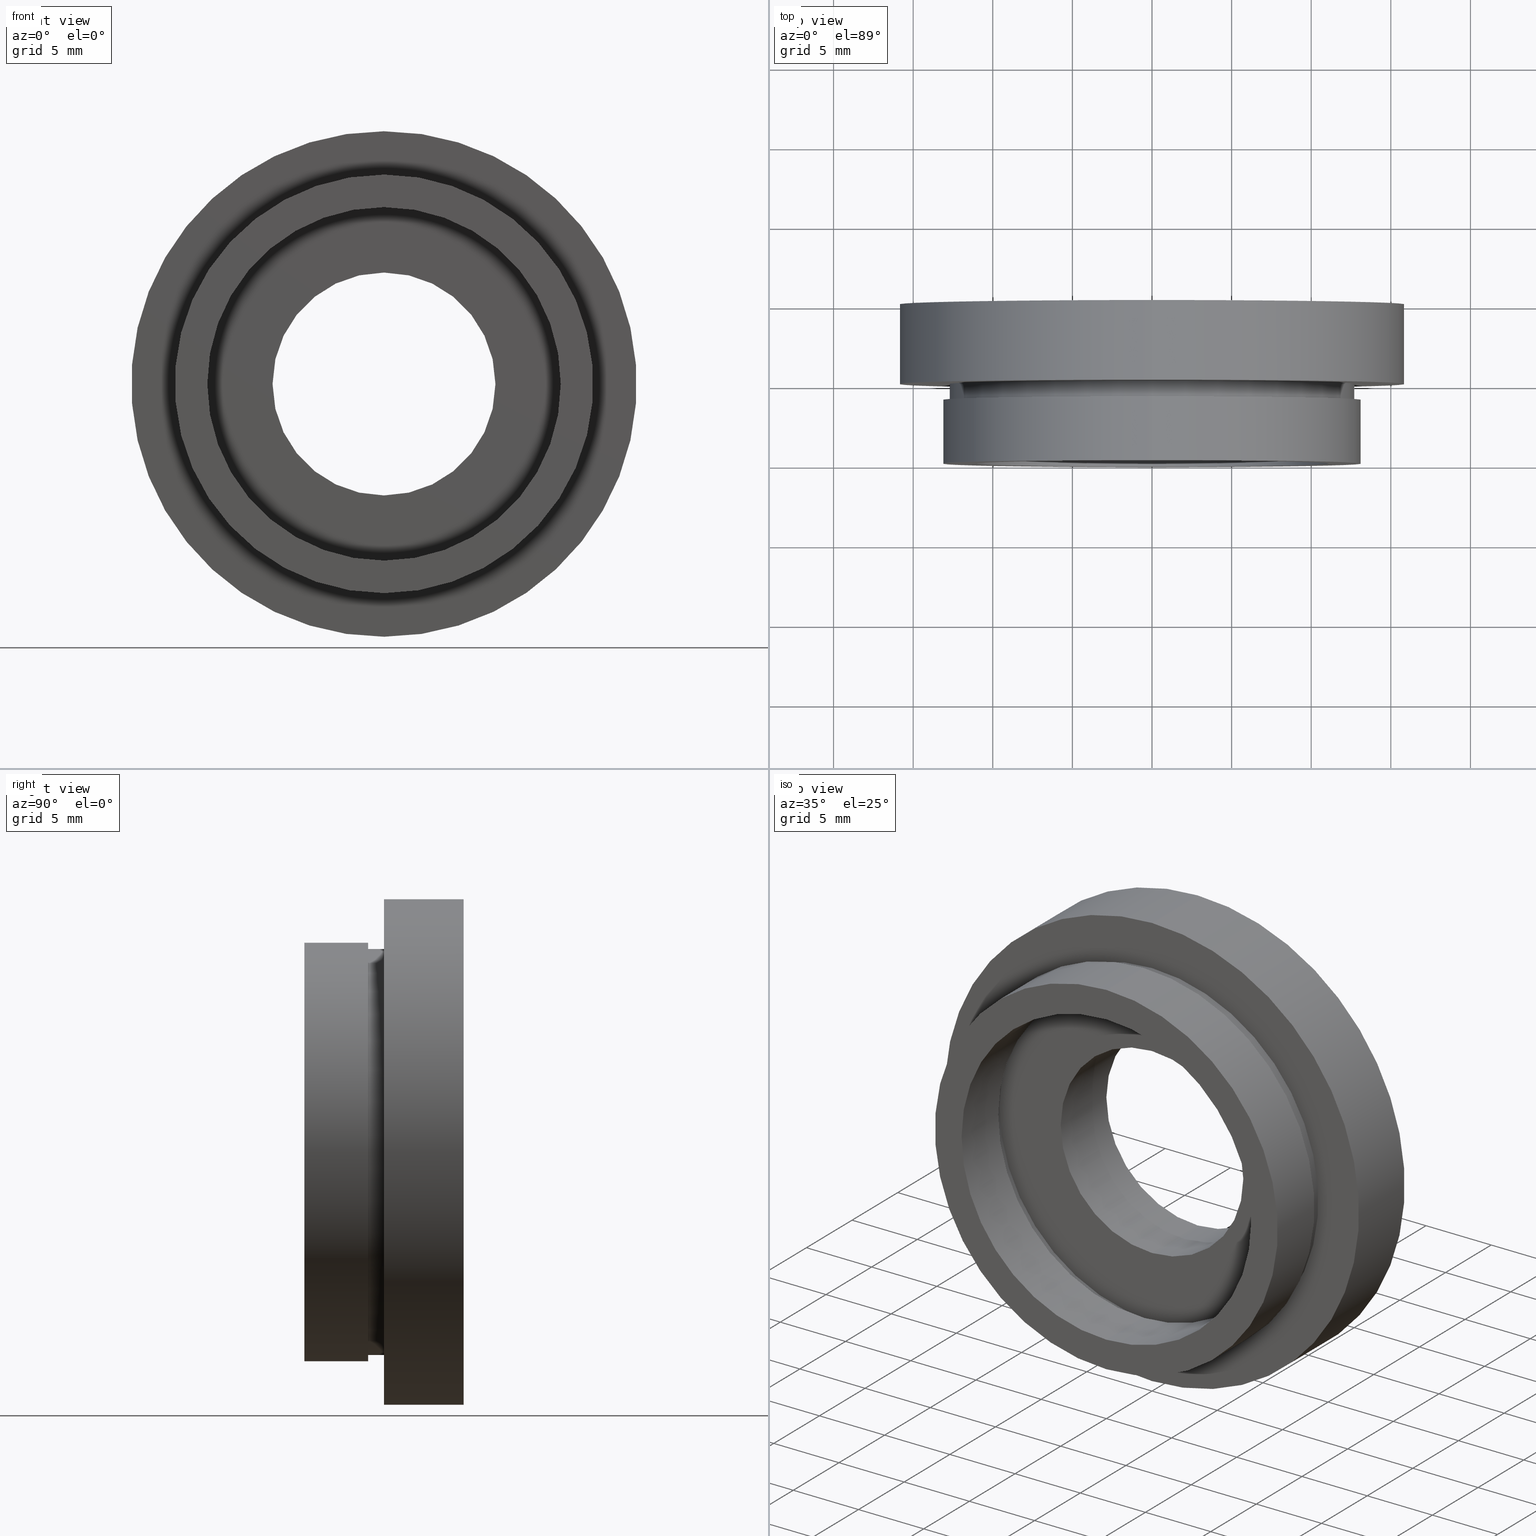
[diagram: canonical four-view strip — front | top / right | iso, engineering-drawing reading convention]
A machine part, canonical four-view strip (front | top / right | iso — engineering-drawing reading convention). The complete STEP part file that produces these views, byte-faithful:
ISO-10303-21;
HEADER;
FILE_DESCRIPTION (( 'STEP AP214' ),
    '1' );
FILE_NAME ('504118.STEP',
    '2019-10-10T02:32:36',
    ( 'user' ),
    ( '΢���й�' ),
    'SwSTEP 2.0',
    'SolidWorks 2016',
    '' );
FILE_SCHEMA (( 'AUTOMOTIVE_DESIGN' ));
ENDSEC;

DATA;
#1 = ORIENTED_EDGE ( 'NONE', *, *, #54, .F. ) ;
#2 = ADVANCED_FACE ( 'NONE', ( #399 ), #504, .F. ) ;
#3 = DIRECTION ( 'NONE',  ( 0.0000000000000000000, 0.0000000000000000000, 1.000000000000000000 ) ) ;
#4 =( NAMED_UNIT ( * ) PLANE_ANGLE_UNIT ( ) SI_UNIT ( $, .RADIAN. ) );
#5 = AXIS2_PLACEMENT_3D ( 'NONE', #67, #74, #57 ) ;
#6 = DIRECTION ( 'NONE',  ( 0.0000000000000000000, 0.0000000000000000000, 1.000000000000000000 ) ) ;
#7 = ORIENTED_EDGE ( 'NONE', *, *, #143, .T. ) ;
#8 = CYLINDRICAL_SURFACE ( 'NONE', #257, 15.87500000000000000 ) ;
#9 = ORIENTED_EDGE ( 'NONE', *, *, #520, .F. ) ;
#10 = AXIS2_PLACEMENT_3D ( 'NONE', #193, #482, #103 ) ;
#11 = CARTESIAN_POINT ( 'NONE',  ( 0.0000000000000000000, 4.000000000000000000, 0.0000000000000000000 ) ) ;
#12 =( LENGTH_UNIT ( ) NAMED_UNIT ( * ) SI_UNIT ( .MILLI., .METRE. ) );
#13 = VECTOR ( 'NONE', #95, 1000.000000000000000 ) ;
#14 =( NAMED_UNIT ( * ) PLANE_ANGLE_UNIT ( ) SI_UNIT ( $, .RADIAN. ) );
#15 = ORIENTED_EDGE ( 'NONE', *, *, #621, .F. ) ;
#16 = CYLINDRICAL_SURFACE ( 'NONE', #401, 12.75000000000000000 ) ;
#17 = COLOUR_RGB ( '',1.000000000000000000, 1.000000000000000000, 1.000000000000000000 ) ;
#18 =( GEOMETRIC_REPRESENTATION_CONTEXT ( 3 ) GLOBAL_UNCERTAINTY_ASSIGNED_CONTEXT ( ( #586 ) ) GLOBAL_UNIT_ASSIGNED_CONTEXT ( ( #252, #264, #417 ) ) REPRESENTATION_CONTEXT ( 'NONE', 'WORKASPACE' ) );
#19 = CARTESIAN_POINT ( 'NONE',  ( 0.0000000000000000000, 13.74468085106383300, 0.0000000000000000000 ) ) ;
#20 = DIRECTION ( 'NONE',  ( 0.0000000000000000000, 0.0000000000000000000, 1.000000000000000000 ) ) ;
#21 = LINE ( 'NONE', #24, #609 ) ;
#22 = CARTESIAN_POINT ( 'NONE',  ( 1.609798217479195900E-015, 13.74468085106383300, -13.14500000000000000 ) ) ;
#23 = EDGE_LOOP ( 'NONE', ( #38, #222 ) ) ;
#24 = CARTESIAN_POINT ( 'NONE',  ( 0.0000000000000000000, 13.74468085106383300, 15.87500000000000000 ) ) ;
#25 = CARTESIAN_POINT ( 'NONE',  ( 0.0000000000000000000, 13.74468085106383300, 0.0000000000000000000 ) ) ;
#26 = AXIS2_PLACEMENT_3D ( 'NONE', #554, #400, #530 ) ;
#27 = CIRCLE ( 'NONE', #525, 11.10000000000000100 ) ;
#28 = DIRECTION ( 'NONE',  ( 0.0000000000000000000, 0.0000000000000000000, 1.000000000000000000 ) ) ;
#29 = FACE_OUTER_BOUND ( 'NONE', #207, .T. ) ;
#30 = VERTEX_POINT ( 'NONE', #279 ) ;
#31 = LINE ( 'NONE', #63, #36 ) ;
#32 = FILL_AREA_STYLE ('',( #45 ) ) ;
#33 = SURFACE_SIDE_STYLE ('',( #131 ) ) ;
#34 = AXIS2_PLACEMENT_3D ( 'NONE', #42, #37, #20 ) ;
#35 = ORIENTED_EDGE ( 'NONE', *, *, #261, .F. ) ;
#36 = VECTOR ( 'NONE', #102, 1000.000000000000000 ) ;
#37 = DIRECTION ( 'NONE',  ( -0.0000000000000000000, 1.000000000000000000, -0.0000000000000000000 ) ) ;
#38 = ORIENTED_EDGE ( 'NONE', *, *, #435, .T. ) ;
#39 = CARTESIAN_POINT ( 'NONE',  ( 0.0000000000000000000, 13.74468085106383300, 0.0000000000000000000 ) ) ;
#40 = DIRECTION ( 'NONE',  ( -0.0000000000000000000, 1.000000000000000000, -0.0000000000000000000 ) ) ;
#41 = CIRCLE ( 'NONE', #104, 11.10000000000000100 ) ;
#42 = CARTESIAN_POINT ( 'NONE',  ( 0.0000000000000000000, 4.999999999999999100, 0.0000000000000000000 ) ) ;
#43 = ORIENTED_EDGE ( 'NONE', *, *, #490, .F. ) ;
#44 = ADVANCED_FACE ( 'NONE', ( #71 ), #418, .F. ) ;
#45 = FILL_AREA_STYLE_COLOUR ( '', #556 ) ;
#46 = CARTESIAN_POINT ( 'NONE',  ( 15.87500000000000000, 5.000000000000000900, 0.0000000000000000000 ) ) ;
#47 = MECHANICAL_DESIGN_GEOMETRIC_PRESENTATION_REPRESENTATION (  '', ( #81 ), #370 ) ;
#48 = COLOUR_RGB ( '',1.000000000000000000, 1.000000000000000000, 1.000000000000000000 ) ;
#49 = AXIS2_PLACEMENT_3D ( 'NONE', #498, #116, #248 ) ;
#50 = SURFACE_STYLE_FILL_AREA ( #314 ) ;
#51 = CIRCLE ( 'NONE', #92, 7.000000000000001800 ) ;
#52 = DIRECTION ( 'NONE',  ( 0.0000000000000000000, 0.0000000000000000000, 1.000000000000000000 ) ) ;
#53 = MECHANICAL_DESIGN_GEOMETRIC_PRESENTATION_REPRESENTATION (  '', ( #588 ), #299 ) ;
#54 = EDGE_CURVE ( 'NONE', #250, #259, #41, .T. ) ;
#55 = CARTESIAN_POINT ( 'NONE',  ( 8.572527594031474200E-016, 13.74468085106383300, -7.000000000000001800 ) ) ;
#56 = ADVANCED_FACE ( 'NONE', ( #171, #326 ), #64, .F. ) ;
#57 = DIRECTION ( 'NONE',  ( 0.0000000000000000000, 0.0000000000000000000, 1.000000000000000000 ) ) ;
#58 = FACE_BOUND ( 'NONE', #361, .T. ) ;
#59 = AXIS2_PLACEMENT_3D ( 'NONE', #132, #100, #351 ) ;
#60 = VERTEX_POINT ( 'NONE', #218 ) ;
#61 = CIRCLE ( 'NONE', #371, 12.75000000000000000 ) ;
#62 = VECTOR ( 'NONE', #69, 1000.000000000000000 ) ;
#63 = CARTESIAN_POINT ( 'NONE',  ( 0.0000000000000000000, 13.74468085106383300, 12.75000000000000000 ) ) ;
#64 = PLANE ( 'NONE',  #146 ) ;
#65 = EDGE_CURVE ( 'NONE', #346, #292, #263, .T. ) ;
#66 = SURFACE_STYLE_USAGE ( .BOTH. , #183 ) ;
#67 = CARTESIAN_POINT ( 'NONE',  ( 0.0000000000000000000, 4.000000000000000000, 0.0000000000000000000 ) ) ;
#68 = DIRECTION ( 'NONE',  ( -0.0000000000000000000, 1.000000000000000000, -0.0000000000000000000 ) ) ;
#69 = DIRECTION ( 'NONE',  ( -0.0000000000000000000, 1.000000000000000000, -0.0000000000000000000 ) ) ;
#70 = ORIENTED_EDGE ( 'NONE', *, *, #553, .T. ) ;
#71 = FACE_OUTER_BOUND ( 'NONE', #267, .T. ) ;
#72 = AXIS2_PLACEMENT_3D ( 'NONE', #174, #236, #124 ) ;
#73 = DIRECTION ( 'NONE',  ( -0.0000000000000000000, 1.000000000000000000, -0.0000000000000000000 ) ) ;
#74 = DIRECTION ( 'NONE',  ( -0.0000000000000000000, 1.000000000000000000, -0.0000000000000000000 ) ) ;
#75 = DIRECTION ( 'NONE',  ( -0.0000000000000000000, 1.000000000000000000, -0.0000000000000000000 ) ) ;
#76 = ORIENTED_EDGE ( 'NONE', *, *, #532, .T. ) ;
#77 = EDGE_LOOP ( 'NONE', ( #43, #484, #76, #415 ) ) ;
#78 = DIRECTION ( 'NONE',  ( 0.0000000000000000000, 0.0000000000000000000, 1.000000000000000000 ) ) ;
#79 = UNCERTAINTY_MEASURE_WITH_UNIT (LENGTH_MEASURE( 1.000000000000000100E-005 ), #321, 'distance_accuracy_value', 'NONE');
#80 =( NAMED_UNIT ( * ) SI_UNIT ( $, .STERADIAN. ) SOLID_ANGLE_UNIT ( ) );
#81 = STYLED_ITEM ( 'NONE', ( #256 ), #511 ) ;
#82 = ORIENTED_EDGE ( 'NONE', *, *, #233, .T. ) ;
#83 = PRESENTATION_LAYER_ASSIGNMENT (  '', '', ( #151 ) ) ;
#84 = SURFACE_STYLE_USAGE ( .BOTH. , #109 ) ;
#85 = CARTESIAN_POINT ( 'NONE',  ( 0.0000000000000000000, 4.999999999999999100, 7.000000000000001800 ) ) ;
#86 = ADVANCED_FACE ( 'NONE', ( #208 ), #549, .T. ) ;
#87 = CARTESIAN_POINT ( 'NONE',  ( 0.0000000000000000000, 5.000000000000000900, 12.75000000000000000 ) ) ;
#88 = VERTEX_POINT ( 'NONE', #188 ) ;
#89 = ORIENTED_EDGE ( 'NONE', *, *, #477, .T. ) ;
#90 = SURFACE_STYLE_FILL_AREA ( #123 ) ;
#91 = FILL_AREA_STYLE_COLOUR ( '', #302 ) ;
#92 = AXIS2_PLACEMENT_3D ( 'NONE', #147, #596, #195 ) ;
#93 = CARTESIAN_POINT ( 'NONE',  ( 1.561424668912875100E-015, 4.000000000000000000, -12.75000000000000000 ) ) ;
#94 = PRESENTATION_LAYER_ASSIGNMENT (  '', '', ( #216 ) ) ;
#95 = DIRECTION ( 'NONE',  ( -0.0000000000000000000, 1.000000000000000000, -0.0000000000000000000 ) ) ;
#96 = PRESENTATION_LAYER_ASSIGNMENT (  '', '', ( #588 ) ) ;
#97 = VERTEX_POINT ( 'NONE', #184 ) ;
#98 = DIRECTION ( 'NONE',  ( -0.0000000000000000000, 1.000000000000000000, -0.0000000000000000000 ) ) ;
#99 = CARTESIAN_POINT ( 'NONE',  ( 0.0000000000000000000, 5.000000000000000900, 0.0000000000000000000 ) ) ;
#100 = DIRECTION ( 'NONE',  ( -0.0000000000000000000, 1.000000000000000000, -0.0000000000000000000 ) ) ;
#101 = ORIENTED_EDGE ( 'NONE', *, *, #583, .T. ) ;
#102 = DIRECTION ( 'NONE',  ( -0.0000000000000000000, 1.000000000000000000, -0.0000000000000000000 ) ) ;
#103 = DIRECTION ( 'NONE',  ( 0.0000000000000000000, 0.0000000000000000000, 1.000000000000000000 ) ) ;
#104 = AXIS2_PLACEMENT_3D ( 'NONE', #226, #514, #333 ) ;
#105 = FACE_OUTER_BOUND ( 'NONE', #138, .T. ) ;
#106 = EDGE_LOOP ( 'NONE', ( #422, #278 ) ) ;
#107 = CIRCLE ( 'NONE', #561, 11.70000000000000100 ) ;
#108 = DIRECTION ( 'NONE',  ( -0.0000000000000000000, 1.000000000000000000, -0.0000000000000000000 ) ) ;
#109 = SURFACE_SIDE_STYLE ('',( #90 ) ) ;
#110 = MECHANICAL_DESIGN_GEOMETRIC_PRESENTATION_REPRESENTATION (  '', ( #151 ), #198 ) ;
#111 = MECHANICAL_DESIGN_GEOMETRIC_PRESENTATION_REPRESENTATION (  '', ( #382 ), #298 ) ;
#112 = CARTESIAN_POINT ( 'NONE',  ( 0.0000000000000000000, 10.00000000000000000, 7.000000000000001800 ) ) ;
#113 = ORIENTED_EDGE ( 'NONE', *, *, #164, .T. ) ;
#114 = DIRECTION ( 'NONE',  ( -0.0000000000000000000, 1.000000000000000000, -0.0000000000000000000 ) ) ;
#115 = PRODUCT_DEFINITION_SHAPE ( 'NONE', 'NONE',  #509 ) ;
#116 = DIRECTION ( 'NONE',  ( -0.0000000000000000000, 1.000000000000000000, -0.0000000000000000000 ) ) ;
#117 =( NAMED_UNIT ( * ) PLANE_ANGLE_UNIT ( ) SI_UNIT ( $, .RADIAN. ) );
#118 = EDGE_CURVE ( 'NONE', #30, #60, #508, .T. ) ;
#119 = ORIENTED_EDGE ( 'NONE', *, *, #565, .T. ) ;
#120 = CARTESIAN_POINT ( 'NONE',  ( 7.000000000000001800, 10.00000000000000000, 0.0000000000000000000 ) ) ;
#121 = SURFACE_STYLE_FILL_AREA ( #581 ) ;
#122 = VERTEX_POINT ( 'NONE', #403 ) ;
#123 = FILL_AREA_STYLE ('',( #91 ) ) ;
#124 = DIRECTION ( 'NONE',  ( 0.0000000000000000000, 0.0000000000000000000, 1.000000000000000000 ) ) ;
#125 = ORIENTED_EDGE ( 'NONE', *, *, #435, .F. ) ;
#126 = DIRECTION ( 'NONE',  ( -0.0000000000000000000, 1.000000000000000000, -0.0000000000000000000 ) ) ;
#127 = PLANE ( 'NONE',  #72 ) ;
#128 = UNCERTAINTY_MEASURE_WITH_UNIT (LENGTH_MEASURE( 1.000000000000000100E-005 ), #176, 'distance_accuracy_value', 'NONE');
#129 = ORIENTED_EDGE ( 'NONE', *, *, #539, .T. ) ;
#130 = LINE ( 'NONE', #468, #367 ) ;
#131 = SURFACE_STYLE_FILL_AREA ( #352 ) ;
#132 = CARTESIAN_POINT ( 'NONE',  ( 0.0000000000000000000, 13.74468085106383300, 0.0000000000000000000 ) ) ;
#133 = AXIS2_PLACEMENT_3D ( 'NONE', #479, #407, #452 ) ;
#134 = CARTESIAN_POINT ( 'NONE',  ( 0.0000000000000000000, 13.74468085106383300, 0.0000000000000000000 ) ) ;
#135 = VERTEX_POINT ( 'NONE', #85 ) ;
#136 = VERTEX_POINT ( 'NONE', #315 ) ;
#137 =( NAMED_UNIT ( * ) SI_UNIT ( $, .STERADIAN. ) SOLID_ANGLE_UNIT ( ) );
#138 = EDGE_LOOP ( 'NONE', ( #388, #495, #204, #82 ) ) ;
#139 = CARTESIAN_POINT ( 'NONE',  ( 0.0000000000000000000, 4.000000000000000000, 0.0000000000000000000 ) ) ;
#140 = DIRECTION ( 'NONE',  ( -0.0000000000000000000, 1.000000000000000000, -0.0000000000000000000 ) ) ;
#141 = PLANE ( 'NONE',  #26 ) ;
#142 = ORIENTED_EDGE ( 'NONE', *, *, #118, .F. ) ;
#143 = EDGE_CURVE ( 'NONE', #309, #409, #61, .T. ) ;
#144 = VECTOR ( 'NONE', #268, 1000.000000000000000 ) ;
#145 = DIRECTION ( 'NONE',  ( 0.0000000000000000000, -0.0000000000000000000, -1.000000000000000000 ) ) ;
#146 = AXIS2_PLACEMENT_3D ( 'NONE', #46, #237, #523 ) ;
#147 = CARTESIAN_POINT ( 'NONE',  ( 0.0000000000000000000, 10.00000000000000000, 0.0000000000000000000 ) ) ;
#148 = FACE_OUTER_BOUND ( 'NONE', #291, .T. ) ;
#149 = VERTEX_POINT ( 'NONE', #360 ) ;
#150 = LINE ( 'NONE', #487, #567 ) ;
#151 = STYLED_ITEM ( 'NONE', ( #459 ), #406 ) ;
#152 = CIRCLE ( 'NONE', #380, 12.75000000000000000 ) ;
#153 = APPLICATION_PROTOCOL_DEFINITION ( 'draft international standard', 'automotive_design', 1998, #489 ) ;
#154 = CARTESIAN_POINT ( 'NONE',  ( 1.609798217479195900E-015, 4.000000000000000000, -13.14500000000000000 ) ) ;
#155 = FILL_AREA_STYLE_COLOUR ( '', #620 ) ;
#156 = SURFACE_STYLE_USAGE ( .BOTH. , #437 ) ;
#157 = DIRECTION ( 'NONE',  ( -0.0000000000000000000, 1.000000000000000000, -0.0000000000000000000 ) ) ;
#158 = EDGE_LOOP ( 'NONE', ( #443, #129, #89, #531 ) ) ;
#159 = EDGE_LOOP ( 'NONE', ( #284, #170 ) ) ;
#160 = ORIENTED_EDGE ( 'NONE', *, *, #175, .T. ) ;
#161 = ORIENTED_EDGE ( 'NONE', *, *, #474, .F. ) ;
#162 = SURFACE_STYLE_USAGE ( .BOTH. , #33 ) ;
#163 = DIRECTION ( 'NONE',  ( 0.0000000000000000000, -0.0000000000000000000, -1.000000000000000000 ) ) ;
#164 = EDGE_CURVE ( 'NONE', #88, #564, #425, .T. ) ;
#165 = AXIS2_PLACEMENT_3D ( 'NONE', #445, #98, #286 ) ;
#166 = COLOUR_RGB ( '',1.000000000000000000, 1.000000000000000000, 1.000000000000000000 ) ;
#167 = VECTOR ( 'NONE', #281, 1000.000000000000000 ) ;
#168 = AXIS2_PLACEMENT_3D ( 'NONE', #249, #496, #206 ) ;
#169 = VERTEX_POINT ( 'NONE', #598 ) ;
#170 = ORIENTED_EDGE ( 'NONE', *, *, #164, .F. ) ;
#171 = FACE_OUTER_BOUND ( 'NONE', #159, .T. ) ;
#172 = PRESENTATION_STYLE_ASSIGNMENT (( #156 ) ) ;
#173 = VERTEX_POINT ( 'NONE', #313 ) ;
#174 = CARTESIAN_POINT ( 'NONE',  ( 11.70000000000000100, 4.999999999999999100, 0.0000000000000000000 ) ) ;
#175 = EDGE_CURVE ( 'NONE', #225, #426, #282, .T. ) ;
#176 =( LENGTH_UNIT ( ) NAMED_UNIT ( * ) SI_UNIT ( .MILLI., .METRE. ) );
#177 = ADVANCED_FACE ( 'NONE', ( #460 ), #202, .F. ) ;
#178 = CARTESIAN_POINT ( 'NONE',  ( 1.359357947053562400E-015, 4.000000000000000000, -11.10000000000000100 ) ) ;
#179 = CIRCLE ( 'NONE', #506, 11.10000000000000100 ) ;
#180 = ORIENTED_EDGE ( 'NONE', *, *, #54, .T. ) ;
#181 = CARTESIAN_POINT ( 'NONE',  ( 0.0000000000000000000, 13.74468085106383300, 7.000000000000001800 ) ) ;
#182 = CIRCLE ( 'NONE', #34, 7.000000000000001800 ) ;
#183 = SURFACE_SIDE_STYLE ('',( #121 ) ) ;
#184 = CARTESIAN_POINT ( 'NONE',  ( 1.359357947053562400E-015, 0.0000000000000000000, -11.10000000000000100 ) ) ;
#185 = DIRECTION ( 'NONE',  ( -0.0000000000000000000, 1.000000000000000000, -0.0000000000000000000 ) ) ;
#186 = AXIS2_PLACEMENT_3D ( 'NONE', #576, #295, #499 ) ;
#187 = EDGE_LOOP ( 'NONE', ( #458, #101, #180, #324 ) ) ;
#188 = CARTESIAN_POINT ( 'NONE',  ( 1.944126793646423200E-015, 5.000000000000000900, -15.87500000000000000 ) ) ;
#189 = ORIENTED_EDGE ( 'NONE', *, *, #538, .T. ) ;
#190 = DIRECTION ( 'NONE',  ( 0.0000000000000000000, 0.0000000000000000000, 1.000000000000000000 ) ) ;
#191 = CLOSED_SHELL ( 'NONE', ( #272, #480, #86, #44, #2, #518, #420, #488, #177, #329, #192, #522, #412, #56, #563, #528, #287, #327 ) ) ;
#192 = ADVANCED_FACE ( 'NONE', ( #623 ), #347, .F. ) ;
#193 = CARTESIAN_POINT ( 'NONE',  ( 0.0000000000000000000, 10.00000000000000000, 0.0000000000000000000 ) ) ;
#194 = DIRECTION ( 'NONE',  ( 0.0000000000000000000, 0.0000000000000000000, 1.000000000000000000 ) ) ;
#195 = DIRECTION ( 'NONE',  ( 0.0000000000000000000, 0.0000000000000000000, 1.000000000000000000 ) ) ;
#196 = PRESENTATION_STYLE_ASSIGNMENT (( #607 ) ) ;
#197 = CARTESIAN_POINT ( 'NONE',  ( 0.0000000000000000000, 4.000000000000000000, 11.10000000000000100 ) ) ;
#198 =( GEOMETRIC_REPRESENTATION_CONTEXT ( 3 ) GLOBAL_UNCERTAINTY_ASSIGNED_CONTEXT ( ( #343 ) ) GLOBAL_UNIT_ASSIGNED_CONTEXT ( ( #432, #4, #605 ) ) REPRESENTATION_CONTEXT ( 'NONE', 'WORKASPACE' ) );
#199 = FILL_AREA_STYLE_COLOUR ( '', #491 ) ;
#200 = PRESENTATION_LAYER_ASSIGNMENT (  '', '', ( #382 ) ) ;
#201 = EDGE_CURVE ( 'NONE', #232, #149, #223, .T. ) ;
#202 = CYLINDRICAL_SURFACE ( 'NONE', #244, 11.69999999999999900 ) ;
#203 = ORIENTED_EDGE ( 'NONE', *, *, #520, .T. ) ;
#204 = ORIENTED_EDGE ( 'NONE', *, *, #466, .T. ) ;
#205 = PRESENTATION_STYLE_ASSIGNMENT (( #308 ) ) ;
#206 = DIRECTION ( 'NONE',  ( 0.0000000000000000000, 0.0000000000000000000, 1.000000000000000000 ) ) ;
#207 = EDGE_LOOP ( 'NONE', ( #557, #294 ) ) ;
#208 = FACE_OUTER_BOUND ( 'NONE', #492, .T. ) ;
#209 = ORIENTED_EDGE ( 'NONE', *, *, #477, .F. ) ;
#210 = CARTESIAN_POINT ( 'NONE',  ( 0.0000000000000000000, 13.74468085106383300, 0.0000000000000000000 ) ) ;
#211 = DIRECTION ( 'NONE',  ( -0.0000000000000000000, 1.000000000000000000, 0.0000000000000000000 ) ) ;
#212 = AXIS2_PLACEMENT_3D ( 'NONE', #120, #461, #163 ) ;
#213 = ORIENTED_EDGE ( 'NONE', *, *, #555, .F. ) ;
#214 = AXIS2_PLACEMENT_3D ( 'NONE', #39, #545, #464 ) ;
#215 = EDGE_LOOP ( 'NONE', ( #35, #341 ) ) ;
#216 = STYLED_ITEM ( 'NONE', ( #196 ), #272 ) ;
#217 = CARTESIAN_POINT ( 'NONE',  ( 1.561424668912875100E-015, 5.000000000000000900, -12.75000000000000000 ) ) ;
#218 = CARTESIAN_POINT ( 'NONE',  ( 0.0000000000000000000, 10.00000000000000000, 15.87500000000000000 ) ) ;
#219 = DIRECTION ( 'NONE',  ( -0.0000000000000000000, 1.000000000000000000, -0.0000000000000000000 ) ) ;
#220 = CARTESIAN_POINT ( 'NONE',  ( 13.14500000000000000, -2.541142108230759100E-016, 0.0000000000000000000 ) ) ;
#221 = CARTESIAN_POINT ( 'NONE',  ( 8.572527594031474200E-016, 4.999999999999999100, -7.000000000000001800 ) ) ;
#222 = ORIENTED_EDGE ( 'NONE', *, *, #118, .T. ) ;
#223 = CIRCLE ( 'NONE', #618, 13.14500000000000000 ) ;
#224 = LINE ( 'NONE', #589, #62 ) ;
#225 = VERTEX_POINT ( 'NONE', #612 ) ;
#226 = CARTESIAN_POINT ( 'NONE',  ( 0.0000000000000000000, 4.000000000000000000, 0.0000000000000000000 ) ) ;
#227 = STYLED_ITEM ( 'NONE', ( #172 ), #420 ) ;
#228 = DIRECTION ( 'NONE',  ( 0.0000000000000000000, -1.000000000000000000, 0.0000000000000000000 ) ) ;
#229 = ORIENTED_EDGE ( 'NONE', *, *, #597, .F. ) ;
#230 = FACE_OUTER_BOUND ( 'NONE', #616, .T. ) ;
#231 = ORIENTED_EDGE ( 'NONE', *, *, #560, .F. ) ;
#232 = VERTEX_POINT ( 'NONE', #154 ) ;
#233 = EDGE_CURVE ( 'NONE', #259, #250, #179, .T. ) ;
#234 = EDGE_LOOP ( 'NONE', ( #271, #449, #319, #203 ) ) ;
#235 = DIRECTION ( 'NONE',  ( 0.0000000000000000000, 0.0000000000000000000, 1.000000000000000000 ) ) ;
#236 = DIRECTION ( 'NONE',  ( -0.0000000000000000000, 1.000000000000000000, 0.0000000000000000000 ) ) ;
#237 = DIRECTION ( 'NONE',  ( -0.0000000000000000000, 1.000000000000000000, 0.0000000000000000000 ) ) ;
#238 = PRODUCT_DEFINITION_FORMATION_WITH_SPECIFIED_SOURCE ( '�κ�', '', #379, .NOT_KNOWN. ) ;
#239 = CARTESIAN_POINT ( 'NONE',  ( 0.0000000000000000000, 13.74468085106383300, 0.0000000000000000000 ) ) ;
#240 = UNCERTAINTY_MEASURE_WITH_UNIT (LENGTH_MEASURE( 1.000000000000000100E-005 ), #429, 'distance_accuracy_value', 'NONE');
#241 = LINE ( 'NONE', #55, #13 ) ;
#242 = MECHANICAL_DESIGN_GEOMETRIC_PRESENTATION_REPRESENTATION (  '', ( #216 ), #18 ) ;
#243 = DIRECTION ( 'NONE',  ( 0.0000000000000000000, 0.0000000000000000000, 1.000000000000000000 ) ) ;
#244 = AXIS2_PLACEMENT_3D ( 'NONE', #134, #469, #304 ) ;
#245 = CARTESIAN_POINT ( 'NONE',  ( 0.0000000000000000000, 5.000000000000000900, 15.87500000000000000 ) ) ;
#246 = EDGE_LOOP ( 'NONE', ( #301, #542, #515, #369 ) ) ;
#247 = CARTESIAN_POINT ( 'NONE',  ( 0.0000000000000000000, 4.000000000000000000, 11.69999999999999900 ) ) ;
#248 = DIRECTION ( 'NONE',  ( 0.0000000000000000000, 0.0000000000000000000, 1.000000000000000000 ) ) ;
#249 = CARTESIAN_POINT ( 'NONE',  ( 0.0000000000000000000, 0.0000000000000000000, 0.0000000000000000000 ) ) ;
#250 = VERTEX_POINT ( 'NONE', #178 ) ;
#251 = CIRCLE ( 'NONE', #375, 11.69999999999999900 ) ;
#252 =( LENGTH_UNIT ( ) NAMED_UNIT ( * ) SI_UNIT ( .MILLI., .METRE. ) );
#253 = LINE ( 'NONE', #414, #624 ) ;
#254 = CARTESIAN_POINT ( 'NONE',  ( 0.0000000000000000000, 4.000000000000000000, 12.75000000000000000 ) ) ;
#255 = AXIS2_PLACEMENT_3D ( 'NONE', #342, #228, #145 ) ;
#256 = PRESENTATION_STYLE_ASSIGNMENT (( #516 ) ) ;
#257 = AXIS2_PLACEMENT_3D ( 'NONE', #25, #114, #78 ) ;
#258 =( NAMED_UNIT ( * ) PLANE_ANGLE_UNIT ( ) SI_UNIT ( $, .RADIAN. ) );
#259 = VERTEX_POINT ( 'NONE', #197 ) ;
#260 = CARTESIAN_POINT ( 'NONE',  ( 0.0000000000000000000, 13.74468085106383300, 0.0000000000000000000 ) ) ;
#261 = EDGE_CURVE ( 'NONE', #292, #346, #441, .T. ) ;
#262 = DIRECTION ( 'NONE',  ( 0.0000000000000000000, 0.0000000000000000000, 1.000000000000000000 ) ) ;
#263 = CIRCLE ( 'NONE', #5, 12.75000000000000000 ) ;
#264 =( NAMED_UNIT ( * ) PLANE_ANGLE_UNIT ( ) SI_UNIT ( $, .RADIAN. ) );
#265 = CIRCLE ( 'NONE', #49, 13.14500000000000000 ) ;
#266 = CYLINDRICAL_SURFACE ( 'NONE', #373, 13.14500000000000000 ) ;
#267 = EDGE_LOOP ( 'NONE', ( #355, #594, #494, #229 ) ) ;
#268 = DIRECTION ( 'NONE',  ( -0.0000000000000000000, 1.000000000000000000, -0.0000000000000000000 ) ) ;
#269 = DIRECTION ( 'NONE',  ( 0.0000000000000000000, 0.0000000000000000000, 1.000000000000000000 ) ) ;
#270 =( NAMED_UNIT ( * ) SI_UNIT ( $, .STERADIAN. ) SOLID_ANGLE_UNIT ( ) );
#271 = ORIENTED_EDGE ( 'NONE', *, *, #385, .F. ) ;
#272 = ADVANCED_FACE ( 'NONE', ( #592 ), #356, .T. ) ;
#273 = DIRECTION ( 'NONE',  ( 1.000000000000000000, 0.0000000000000000000, 0.0000000000000000000 ) ) ;
#274 = CIRCLE ( 'NONE', #365, 13.14500000000000000 ) ;
#275 =( LENGTH_UNIT ( ) NAMED_UNIT ( * ) SI_UNIT ( .MILLI., .METRE. ) );
#276 = CIRCLE ( 'NONE', #10, 15.87500000000000000 ) ;
#277 = EDGE_CURVE ( 'NONE', #135, #397, #471, .T. ) ;
#278 = ORIENTED_EDGE ( 'NONE', *, *, #362, .T. ) ;
#279 = CARTESIAN_POINT ( 'NONE',  ( 1.944126793646423200E-015, 10.00000000000000000, -15.87500000000000000 ) ) ;
#280 = CARTESIAN_POINT ( 'NONE',  ( 1.944126793646423200E-015, 13.74468085106383300, -15.87500000000000000 ) ) ;
#281 = DIRECTION ( 'NONE',  ( -0.0000000000000000000, 1.000000000000000000, -0.0000000000000000000 ) ) ;
#282 = CIRCLE ( 'NONE', #517, 11.69999999999999900 ) ;
#283 =( NAMED_UNIT ( * ) PLANE_ANGLE_UNIT ( ) SI_UNIT ( $, .RADIAN. ) );
#284 = ORIENTED_EDGE ( 'NONE', *, *, #553, .F. ) ;
#285 = CIRCLE ( 'NONE', #330, 15.87500000000000000 ) ;
#286 = DIRECTION ( 'NONE',  ( 0.0000000000000000000, 0.0000000000000000000, 1.000000000000000000 ) ) ;
#287 = ADVANCED_FACE ( 'NONE', ( #456 ), #266, .T. ) ;
#288 =( NAMED_UNIT ( * ) SI_UNIT ( $, .STERADIAN. ) SOLID_ANGLE_UNIT ( ) );
#289 = PRESENTATION_LAYER_ASSIGNMENT (  '', '', ( #227 ) ) ;
#290 = CARTESIAN_POINT ( 'NONE',  ( 0.0000000000000000000, 0.0000000000000000000, 11.10000000000000100 ) ) ;
#291 = EDGE_LOOP ( 'NONE', ( #582, #572, #231, #323 ) ) ;
#292 = VERTEX_POINT ( 'NONE', #254 ) ;
#293 = VECTOR ( 'NONE', #521, 1000.000000000000000 ) ;
#294 = ORIENTED_EDGE ( 'NONE', *, *, #395, .F. ) ;
#295 = DIRECTION ( 'NONE',  ( -0.0000000000000000000, 1.000000000000000000, -0.0000000000000000000 ) ) ;
#296 =( LENGTH_UNIT ( ) NAMED_UNIT ( * ) SI_UNIT ( .MILLI., .METRE. ) );
#297 = SURFACE_SIDE_STYLE ('',( #317 ) ) ;
#298 =( GEOMETRIC_REPRESENTATION_CONTEXT ( 3 ) GLOBAL_UNCERTAINTY_ASSIGNED_CONTEXT ( ( #128 ) ) GLOBAL_UNIT_ASSIGNED_CONTEXT ( ( #176, #306, #80 ) ) REPRESENTATION_CONTEXT ( 'NONE', 'WORKASPACE' ) );
#299 =( GEOMETRIC_REPRESENTATION_CONTEXT ( 3 ) GLOBAL_UNCERTAINTY_ASSIGNED_CONTEXT ( ( #79 ) ) GLOBAL_UNIT_ASSIGNED_CONTEXT ( ( #321, #601, #457 ) ) REPRESENTATION_CONTEXT ( 'NONE', 'WORKASPACE' ) );
#300 = PRESENTATION_LAYER_ASSIGNMENT (  '', '', ( #405 ) ) ;
#301 = ORIENTED_EDGE ( 'NONE', *, *, #539, .F. ) ;
#302 = COLOUR_RGB ( '',1.000000000000000000, 1.000000000000000000, 1.000000000000000000 ) ;
#303 = CYLINDRICAL_SURFACE ( 'NONE', #442, 11.10000000000000100 ) ;
#304 = DIRECTION ( 'NONE',  ( 0.0000000000000000000, 0.0000000000000000000, 1.000000000000000000 ) ) ;
#305 = UNCERTAINTY_MEASURE_WITH_UNIT (LENGTH_MEASURE( 1.000000000000000100E-005 ), #275, 'distance_accuracy_value', 'NONE');
#306 =( NAMED_UNIT ( * ) PLANE_ANGLE_UNIT ( ) SI_UNIT ( $, .RADIAN. ) );
#307 = DIRECTION ( 'NONE',  ( 0.0000000000000000000, 0.0000000000000000000, 1.000000000000000000 ) ) ;
#308 = SURFACE_STYLE_USAGE ( .BOTH. , #312 ) ;
#309 = VERTEX_POINT ( 'NONE', #217 ) ;
#310 = ORIENTED_EDGE ( 'NONE', *, *, #565, .F. ) ;
#311 = SURFACE_STYLE_FILL_AREA ( #396 ) ;
#312 = SURFACE_SIDE_STYLE ('',( #50 ) ) ;
#313 = CARTESIAN_POINT ( 'NONE',  ( 1.609798217479195900E-015, 0.0000000000000000000, -13.14500000000000000 ) ) ;
#314 = FILL_AREA_STYLE ('',( #363 ) ) ;
#315 = CARTESIAN_POINT ( 'NONE',  ( 0.0000000000000000000, 5.000000000000000900, 11.70000000000000100 ) ) ;
#316 = ORIENTED_EDGE ( 'NONE', *, *, #233, .F. ) ;
#317 = SURFACE_STYLE_FILL_AREA ( #32 ) ;
#318 = DIRECTION ( 'NONE',  ( 0.0000000000000000000, 0.0000000000000000000, 1.000000000000000000 ) ) ;
#319 = ORIENTED_EDGE ( 'NONE', *, *, #597, .T. ) ;
#320 = DIRECTION ( 'NONE',  ( 0.0000000000000000000, 0.0000000000000000000, 1.000000000000000000 ) ) ;
#321 =( LENGTH_UNIT ( ) NAMED_UNIT ( * ) SI_UNIT ( .MILLI., .METRE. ) );
#322 = DIRECTION ( 'NONE',  ( -0.0000000000000000000, 1.000000000000000000, -0.0000000000000000000 ) ) ;
#323 = ORIENTED_EDGE ( 'NONE', *, *, #532, .F. ) ;
#324 = ORIENTED_EDGE ( 'NONE', *, *, #466, .F. ) ;
#325 = CARTESIAN_POINT ( 'NONE',  ( 0.0000000000000000000, 0.0000000000000000000, 0.0000000000000000000 ) ) ;
#326 = FACE_BOUND ( 'NONE', #571, .T. ) ;
#327 = ADVANCED_FACE ( 'NONE', ( #29, #58 ), #364, .F. ) ;
#328 = CARTESIAN_POINT ( 'NONE',  ( 1.432836755002403100E-015, 13.74468085106383300, -11.69999999999999900 ) ) ;
#329 = ADVANCED_FACE ( 'NONE', ( #383, #481 ), #127, .F. ) ;
#330 = AXIS2_PLACEMENT_3D ( 'NONE', #537, #73, #430 ) ;
#331 = DIRECTION ( 'NONE',  ( -0.0000000000000000000, 1.000000000000000000, -0.0000000000000000000 ) ) ;
#332 =( GEOMETRIC_REPRESENTATION_CONTEXT ( 3 ) GLOBAL_UNCERTAINTY_ASSIGNED_CONTEXT ( ( #463 ) ) GLOBAL_UNIT_ASSIGNED_CONTEXT ( ( #296, #258, #270 ) ) REPRESENTATION_CONTEXT ( 'NONE', 'WORKASPACE' ) );
#333 = DIRECTION ( 'NONE',  ( 0.0000000000000000000, 0.0000000000000000000, 1.000000000000000000 ) ) ;
#334 = ORIENTED_EDGE ( 'NONE', *, *, #395, .T. ) ;
#335 = CIRCLE ( 'NONE', #133, 11.10000000000000100 ) ;
#336 = PRESENTATION_LAYER_ASSIGNMENT (  '', '', ( #431 ) ) ;
#337 =( GEOMETRIC_REPRESENTATION_CONTEXT ( 3 ) GLOBAL_UNCERTAINTY_ASSIGNED_CONTEXT ( ( #305 ) ) GLOBAL_UNIT_ASSIGNED_CONTEXT ( ( #275, #283, #288 ) ) REPRESENTATION_CONTEXT ( 'NONE', 'WORKASPACE' ) );
#338 = CARTESIAN_POINT ( 'NONE',  ( 0.0000000000000000000, 13.74468085106383300, 0.0000000000000000000 ) ) ;
#339 = DIRECTION ( 'NONE',  ( -0.0000000000000000000, 1.000000000000000000, -0.0000000000000000000 ) ) ;
#340 = EDGE_LOOP ( 'NONE', ( #424, #334, #579, #438 ) ) ;
#341 = ORIENTED_EDGE ( 'NONE', *, *, #65, .F. ) ;
#342 = CARTESIAN_POINT ( 'NONE',  ( 11.10000000000000100, 4.000000000000000000, 0.0000000000000000000 ) ) ;
#343 = UNCERTAINTY_MEASURE_WITH_UNIT (LENGTH_MEASURE( 1.000000000000000100E-005 ), #432, 'distance_accuracy_value', 'NONE');
#344 = DIRECTION ( 'NONE',  ( 0.0000000000000000000, 0.0000000000000000000, 1.000000000000000000 ) ) ;
#345 = CYLINDRICAL_SURFACE ( 'NONE', #602, 11.10000000000000100 ) ;
#346 = VERTEX_POINT ( 'NONE', #93 ) ;
#347 = CYLINDRICAL_SURFACE ( 'NONE', #214, 7.000000000000001800 ) ;
#348 = FACE_OUTER_BOUND ( 'NONE', #187, .T. ) ;
#349 = DIRECTION ( 'NONE',  ( -0.0000000000000000000, 1.000000000000000000, -0.0000000000000000000 ) ) ;
#350 = PRODUCT_RELATED_PRODUCT_CATEGORY ( 'part', '', ( #379 ) ) ;
#351 = DIRECTION ( 'NONE',  ( 0.0000000000000000000, 0.0000000000000000000, 1.000000000000000000 ) ) ;
#352 = FILL_AREA_STYLE ('',( #411 ) ) ;
#353 = CARTESIAN_POINT ( 'NONE',  ( 0.0000000000000000000, 4.999999999999999100, 0.0000000000000000000 ) ) ;
#354 = LINE ( 'NONE', #22, #293 ) ;
#355 = ORIENTED_EDGE ( 'NONE', *, *, #362, .F. ) ;
#356 = CYLINDRICAL_SURFACE ( 'NONE', #611, 13.14500000000000000 ) ;
#357 = VERTEX_POINT ( 'NONE', #112 ) ;
#358 = DIRECTION ( 'NONE',  ( -0.0000000000000000000, 1.000000000000000000, -0.0000000000000000000 ) ) ;
#359 = ORIENTED_EDGE ( 'NONE', *, *, #546, .F. ) ;
#360 = CARTESIAN_POINT ( 'NONE',  ( 0.0000000000000000000, 4.000000000000000000, 13.14500000000000000 ) ) ;
#361 = EDGE_LOOP ( 'NONE', ( #386, #615 ) ) ;
#362 = EDGE_CURVE ( 'NONE', #397, #135, #182, .T. ) ;
#363 = FILL_AREA_STYLE_COLOUR ( '', #166 ) ;
#364 = PLANE ( 'NONE',  #599 ) ;
#365 = AXIS2_PLACEMENT_3D ( 'NONE', #139, #331, #3 ) ;
#366 = DIRECTION ( 'NONE',  ( -0.0000000000000000000, 1.000000000000000000, -0.0000000000000000000 ) ) ;
#367 = VECTOR ( 'NONE', #185, 1000.000000000000000 ) ;
#368 = MECHANICAL_DESIGN_GEOMETRIC_PRESENTATION_REPRESENTATION (  '', ( #431 ), #332 ) ;
#369 = ORIENTED_EDGE ( 'NONE', *, *, #621, .T. ) ;
#370 =( GEOMETRIC_REPRESENTATION_CONTEXT ( 3 ) GLOBAL_UNCERTAINTY_ASSIGNED_CONTEXT ( ( #486 ) ) GLOBAL_UNIT_ASSIGNED_CONTEXT ( ( #512, #14, #587 ) ) REPRESENTATION_CONTEXT ( 'NONE', 'WORKASPACE' ) );
#371 = AXIS2_PLACEMENT_3D ( 'NONE', #384, #393, #194 ) ;
#372 = FILL_AREA_STYLE ('',( #199 ) ) ;
#373 = AXIS2_PLACEMENT_3D ( 'NONE', #260, #358, #262 ) ;
#374 = DIRECTION ( 'NONE',  ( -0.0000000000000000000, 1.000000000000000000, -0.0000000000000000000 ) ) ;
#375 = AXIS2_PLACEMENT_3D ( 'NONE', #526, #473, #235 ) ;
#376 = CARTESIAN_POINT ( 'NONE',  ( 0.0000000000000000000, 5.000000000000000900, 0.0000000000000000000 ) ) ;
#377 = LINE ( 'NONE', #476, #501 ) ;
#378 = EDGE_LOOP ( 'NONE', ( #500, #160 ) ) ;
#379 = PRODUCT ( '504118', '504118', '', ( #510 ) ) ;
#380 = AXIS2_PLACEMENT_3D ( 'NONE', #619, #606, #436 ) ;
#381 = PLANE ( 'NONE',  #255 ) ;
#382 = STYLED_ITEM ( 'NONE', ( #503 ), #518 ) ;
#383 = FACE_OUTER_BOUND ( 'NONE', #450, .T. ) ;
#384 = CARTESIAN_POINT ( 'NONE',  ( 0.0000000000000000000, 5.000000000000000900, 0.0000000000000000000 ) ) ;
#385 = EDGE_CURVE ( 'NONE', #397, #122, #241, .T. ) ;
#386 = ORIENTED_EDGE ( 'NONE', *, *, #497, .T. ) ;
#387 = CARTESIAN_POINT ( 'NONE',  ( 0.0000000000000000000, 4.000000000000000000, 0.0000000000000000000 ) ) ;
#388 = ORIENTED_EDGE ( 'NONE', *, *, #583, .F. ) ;
#389 = DIRECTION ( 'NONE',  ( -0.0000000000000000000, 1.000000000000000000, -0.0000000000000000000 ) ) ;
#390 = SHAPE_DEFINITION_REPRESENTATION ( #115, #511 ) ;
#391 =( NAMED_UNIT ( * ) PLANE_ANGLE_UNIT ( ) SI_UNIT ( $, .RADIAN. ) );
#392 = ORIENTED_EDGE ( 'NONE', *, *, #201, .T. ) ;
#393 = DIRECTION ( 'NONE',  ( -0.0000000000000000000, 1.000000000000000000, -0.0000000000000000000 ) ) ;
#394 = MECHANICAL_DESIGN_GEOMETRIC_PRESENTATION_REPRESENTATION (  '', ( #227 ), #421 ) ;
#395 = EDGE_CURVE ( 'NONE', #173, #169, #265, .T. ) ;
#396 = FILL_AREA_STYLE ('',( #551 ) ) ;
#397 = VERTEX_POINT ( 'NONE', #221 ) ;
#398 =( NAMED_UNIT ( * ) SI_UNIT ( $, .STERADIAN. ) SOLID_ANGLE_UNIT ( ) );
#399 = FACE_OUTER_BOUND ( 'NONE', #158, .T. ) ;
#400 = DIRECTION ( 'NONE',  ( 0.0000000000000000000, -1.000000000000000000, 0.0000000000000000000 ) ) ;
#401 = AXIS2_PLACEMENT_3D ( 'NONE', #338, #108, #434 ) ;
#402 = DIRECTION ( 'NONE',  ( -0.0000000000000000000, 1.000000000000000000, -0.0000000000000000000 ) ) ;
#403 = CARTESIAN_POINT ( 'NONE',  ( 8.572527594031474200E-016, 10.00000000000000000, -7.000000000000001800 ) ) ;
#404 = AXIS2_PLACEMENT_3D ( 'NONE', #19, #410, #569 ) ;
#405 = STYLED_ITEM ( 'NONE', ( #573 ), #192 ) ;
#406 = MANIFOLD_SOLID_BREP ( '��ת1', #191 ) ;
#407 = DIRECTION ( 'NONE',  ( -0.0000000000000000000, 1.000000000000000000, -0.0000000000000000000 ) ) ;
#408 = EDGE_LOOP ( 'NONE', ( #119, #392 ) ) ;
#409 = VERTEX_POINT ( 'NONE', #87 ) ;
#410 = DIRECTION ( 'NONE',  ( -0.0000000000000000000, 1.000000000000000000, -0.0000000000000000000 ) ) ;
#411 = FILL_AREA_STYLE_COLOUR ( '', #17 ) ;
#412 = ADVANCED_FACE ( 'NONE', ( #230 ), #8, .T. ) ;
#413 = ORIENTED_EDGE ( 'NONE', *, *, #474, .T. ) ;
#414 = CARTESIAN_POINT ( 'NONE',  ( 1.561424668912875100E-015, 13.74468085106383300, -12.75000000000000000 ) ) ;
#415 = ORIENTED_EDGE ( 'NONE', *, *, #143, .F. ) ;
#416 = EDGE_CURVE ( 'NONE', #169, #173, #558, .T. ) ;
#417 =( NAMED_UNIT ( * ) SI_UNIT ( $, .STERADIAN. ) SOLID_ANGLE_UNIT ( ) );
#418 = CYLINDRICAL_SURFACE ( 'NONE', #404, 7.000000000000001800 ) ;
#419 = VECTOR ( 'NONE', #68, 1000.000000000000000 ) ;
#420 = ADVANCED_FACE ( 'NONE', ( #105 ), #345, .F. ) ;
#421 =( GEOMETRIC_REPRESENTATION_CONTEXT ( 3 ) GLOBAL_UNCERTAINTY_ASSIGNED_CONTEXT ( ( #240 ) ) GLOBAL_UNIT_ASSIGNED_CONTEXT ( ( #429, #117, #398 ) ) REPRESENTATION_CONTEXT ( 'NONE', 'WORKASPACE' ) );
#422 = ORIENTED_EDGE ( 'NONE', *, *, #277, .T. ) ;
#423 = DIRECTION ( 'NONE',  ( -0.0000000000000000000, 1.000000000000000000, -0.0000000000000000000 ) ) ;
#424 = ORIENTED_EDGE ( 'NONE', *, *, #577, .F. ) ;
#425 = CIRCLE ( 'NONE', #447, 15.87500000000000000 ) ;
#426 = VERTEX_POINT ( 'NONE', #247 ) ;
#427 = APPLICATION_PROTOCOL_DEFINITION ( 'draft international standard', 'automotive_design', 1998, #519 ) ;
#428 = AXIS2_PLACEMENT_3D ( 'NONE', #99, #219, #578 ) ;
#429 =( LENGTH_UNIT ( ) NAMED_UNIT ( * ) SI_UNIT ( .MILLI., .METRE. ) );
#430 = DIRECTION ( 'NONE',  ( 0.0000000000000000000, 0.0000000000000000000, 1.000000000000000000 ) ) ;
#431 = STYLED_ITEM ( 'NONE', ( #205 ), #287 ) ;
#432 =( LENGTH_UNIT ( ) NAMED_UNIT ( * ) SI_UNIT ( .MILLI., .METRE. ) );
#433 = VERTEX_POINT ( 'NONE', #600 ) ;
#434 = DIRECTION ( 'NONE',  ( 0.0000000000000000000, 0.0000000000000000000, 1.000000000000000000 ) ) ;
#435 = EDGE_CURVE ( 'NONE', #60, #30, #276, .T. ) ;
#436 = DIRECTION ( 'NONE',  ( 0.0000000000000000000, 0.0000000000000000000, 1.000000000000000000 ) ) ;
#437 = SURFACE_SIDE_STYLE ('',( #311 ) ) ;
#438 = ORIENTED_EDGE ( 'NONE', *, *, #201, .F. ) ;
#439 = FACE_BOUND ( 'NONE', #440, .T. ) ;
#440 = EDGE_LOOP ( 'NONE', ( #9, #359 ) ) ;
#441 = CIRCLE ( 'NONE', #590, 12.75000000000000000 ) ;
#442 = AXIS2_PLACEMENT_3D ( 'NONE', #541, #402, #505 ) ;
#443 = ORIENTED_EDGE ( 'NONE', *, *, #175, .F. ) ;
#444 = SURFACE_SIDE_STYLE ('',( #507 ) ) ;
#445 = CARTESIAN_POINT ( 'NONE',  ( 0.0000000000000000000, 13.74468085106383300, 0.0000000000000000000 ) ) ;
#446 = EDGE_CURVE ( 'NONE', #97, #566, #27, .T. ) ;
#447 = AXIS2_PLACEMENT_3D ( 'NONE', #376, #126, #269 ) ;
#448 = PLANE ( 'NONE',  #212 ) ;
#449 = ORIENTED_EDGE ( 'NONE', *, *, #277, .F. ) ;
#450 = EDGE_LOOP ( 'NONE', ( #15, #209 ) ) ;
#451 = DIRECTION ( 'NONE',  ( -0.0000000000000000000, 1.000000000000000000, -0.0000000000000000000 ) ) ;
#452 = DIRECTION ( 'NONE',  ( 0.0000000000000000000, 0.0000000000000000000, 1.000000000000000000 ) ) ;
#453 = SURFACE_STYLE_USAGE ( .BOTH. , #454 ) ;
#454 = SURFACE_SIDE_STYLE ('',( #595 ) ) ;
#455 = FACE_OUTER_BOUND ( 'NONE', #77, .T. ) ;
#456 = FACE_OUTER_BOUND ( 'NONE', #340, .T. ) ;
#457 =( NAMED_UNIT ( * ) SI_UNIT ( $, .STERADIAN. ) SOLID_ANGLE_UNIT ( ) );
#458 = ORIENTED_EDGE ( 'NONE', *, *, #446, .F. ) ;
#459 = PRESENTATION_STYLE_ASSIGNMENT (( #66 ) ) ;
#460 = FACE_OUTER_BOUND ( 'NONE', #246, .T. ) ;
#461 = DIRECTION ( 'NONE',  ( 0.0000000000000000000, -1.000000000000000000, 0.0000000000000000000 ) ) ;
#462 = DIRECTION ( 'NONE',  ( 0.0000000000000000000, 0.0000000000000000000, 1.000000000000000000 ) ) ;
#463 = UNCERTAINTY_MEASURE_WITH_UNIT (LENGTH_MEASURE( 1.000000000000000100E-005 ), #296, 'distance_accuracy_value', 'NONE');
#464 = DIRECTION ( 'NONE',  ( 0.0000000000000000000, 0.0000000000000000000, 1.000000000000000000 ) ) ;
#465 = FACE_BOUND ( 'NONE', #622, .T. ) ;
#466 = EDGE_CURVE ( 'NONE', #566, #259, #150, .T. ) ;
#467 = MECHANICAL_DESIGN_GEOMETRIC_PRESENTATION_REPRESENTATION (  '', ( #405 ), #337 ) ;
#468 = CARTESIAN_POINT ( 'NONE',  ( 0.0000000000000000000, 13.74468085106383300, 11.69999999999999900 ) ) ;
#469 = DIRECTION ( 'NONE',  ( -0.0000000000000000000, 1.000000000000000000, -0.0000000000000000000 ) ) ;
#470 = ORIENTED_EDGE ( 'NONE', *, *, #577, .T. ) ;
#471 = CIRCLE ( 'NONE', #574, 7.000000000000001800 ) ;
#472 = FACE_OUTER_BOUND ( 'NONE', #378, .T. ) ;
#473 = DIRECTION ( 'NONE',  ( -0.0000000000000000000, 1.000000000000000000, -0.0000000000000000000 ) ) ;
#474 = EDGE_CURVE ( 'NONE', #564, #60, #21, .T. ) ;
#475 = CARTESIAN_POINT ( 'NONE',  ( 0.0000000000000000000, 10.00000000000000000, 0.0000000000000000000 ) ) ;
#476 = CARTESIAN_POINT ( 'NONE',  ( 1.359357947053562400E-015, 13.74468085106383300, -11.10000000000000100 ) ) ;
#477 = EDGE_CURVE ( 'NONE', #433, #136, #107, .T. ) ;
#478 = FILL_AREA_STYLE_COLOUR ( '', #48 ) ;
#479 = CARTESIAN_POINT ( 'NONE',  ( 0.0000000000000000000, 0.0000000000000000000, 0.0000000000000000000 ) ) ;
#480 = ADVANCED_FACE ( 'NONE', ( #148 ), #485, .T. ) ;
#481 = FACE_BOUND ( 'NONE', #106, .T. ) ;
#482 = DIRECTION ( 'NONE',  ( -0.0000000000000000000, 1.000000000000000000, -0.0000000000000000000 ) ) ;
#483 = AXIS2_PLACEMENT_3D ( 'NONE', #614, #75, #562 ) ;
#484 = ORIENTED_EDGE ( 'NONE', *, *, #65, .T. ) ;
#485 = CYLINDRICAL_SURFACE ( 'NONE', #165, 12.75000000000000000 ) ;
#486 = UNCERTAINTY_MEASURE_WITH_UNIT (LENGTH_MEASURE( 1.000000000000000100E-005 ), #512, 'distance_accuracy_value', 'NONE');
#487 = CARTESIAN_POINT ( 'NONE',  ( 0.0000000000000000000, 13.74468085106383300, 11.10000000000000100 ) ) ;
#488 = ADVANCED_FACE ( 'NONE', ( #465, #472 ), #381, .F. ) ;
#489 = APPLICATION_CONTEXT ( 'automotive_design' ) ;
#490 = EDGE_CURVE ( 'NONE', #346, #309, #253, .T. ) ;
#491 = COLOUR_RGB ( '',1.000000000000000000, 1.000000000000000000, 1.000000000000000000 ) ;
#492 = EDGE_LOOP ( 'NONE', ( #70, #189, #125, #161 ) ) ;
#493 = COLOUR_RGB ( '',1.000000000000000000, 1.000000000000000000, 1.000000000000000000 ) ;
#494 = ORIENTED_EDGE ( 'NONE', *, *, #546, .T. ) ;
#495 = ORIENTED_EDGE ( 'NONE', *, *, #497, .F. ) ;
#496 = DIRECTION ( 'NONE',  ( -0.0000000000000000000, 1.000000000000000000, -0.0000000000000000000 ) ) ;
#497 = EDGE_CURVE ( 'NONE', #566, #97, #335, .T. ) ;
#498 = CARTESIAN_POINT ( 'NONE',  ( 0.0000000000000000000, 0.0000000000000000000, 0.0000000000000000000 ) ) ;
#499 = DIRECTION ( 'NONE',  ( 0.0000000000000000000, 0.0000000000000000000, 1.000000000000000000 ) ) ;
#500 = ORIENTED_EDGE ( 'NONE', *, *, #580, .T. ) ;
#501 = VECTOR ( 'NONE', #339, 1000.000000000000000 ) ;
#502 = PRESENTATION_STYLE_ASSIGNMENT (( #84 ) ) ;
#503 = PRESENTATION_STYLE_ASSIGNMENT (( #162 ) ) ;
#504 = CYLINDRICAL_SURFACE ( 'NONE', #59, 11.69999999999999900 ) ;
#505 = DIRECTION ( 'NONE',  ( 0.0000000000000000000, 0.0000000000000000000, 1.000000000000000000 ) ) ;
#506 = AXIS2_PLACEMENT_3D ( 'NONE', #387, #613, #243 ) ;
#507 = SURFACE_STYLE_FILL_AREA ( #372 ) ;
#508 = CIRCLE ( 'NONE', #610, 15.87500000000000000 ) ;
#509 = PRODUCT_DEFINITION ( 'δ֪', '', #238, #547 ) ;
#510 = PRODUCT_CONTEXT ( 'NONE', #519, 'mechanical' ) ;
#511 = ADVANCED_BREP_SHAPE_REPRESENTATION ( '504118', ( #406, #584 ), #533 ) ;
#512 =( LENGTH_UNIT ( ) NAMED_UNIT ( * ) SI_UNIT ( .MILLI., .METRE. ) );
#513 = CIRCLE ( 'NONE', #428, 11.70000000000000100 ) ;
#514 = DIRECTION ( 'NONE',  ( -0.0000000000000000000, 1.000000000000000000, -0.0000000000000000000 ) ) ;
#515 = ORIENTED_EDGE ( 'NONE', *, *, #593, .T. ) ;
#516 = SURFACE_STYLE_USAGE ( .BOTH. , #444 ) ;
#517 = AXIS2_PLACEMENT_3D ( 'NONE', #11, #451, #307 ) ;
#518 = ADVANCED_FACE ( 'NONE', ( #348 ), #303, .F. ) ;
#519 = APPLICATION_CONTEXT ( 'automotive_design' ) ;
#520 = EDGE_CURVE ( 'NONE', #357, #122, #559, .T. ) ;
#521 = DIRECTION ( 'NONE',  ( -0.0000000000000000000, 1.000000000000000000, -0.0000000000000000000 ) ) ;
#522 = ADVANCED_FACE ( 'NONE', ( #439, #603 ), #448, .F. ) ;
#523 = DIRECTION ( 'NONE',  ( 0.0000000000000000000, 0.0000000000000000000, 1.000000000000000000 ) ) ;
#524 = LINE ( 'NONE', #328, #419 ) ;
#525 = AXIS2_PLACEMENT_3D ( 'NONE', #325, #322, #6 ) ;
#526 = CARTESIAN_POINT ( 'NONE',  ( 0.0000000000000000000, 4.000000000000000000, 0.0000000000000000000 ) ) ;
#527 = CARTESIAN_POINT ( 'NONE',  ( 0.0000000000000000000, 4.000000000000000000, 0.0000000000000000000 ) ) ;
#528 = ADVANCED_FACE ( 'NONE', ( #540, #544 ), #141, .F. ) ;
#529 = DIRECTION ( 'NONE',  ( 0.0000000000000000000, 0.0000000000000000000, 1.000000000000000000 ) ) ;
#530 = DIRECTION ( 'NONE',  ( 0.0000000000000000000, -0.0000000000000000000, -1.000000000000000000 ) ) ;
#531 = ORIENTED_EDGE ( 'NONE', *, *, #593, .F. ) ;
#532 = EDGE_CURVE ( 'NONE', #292, #409, #31, .T. ) ;
#533 =( GEOMETRIC_REPRESENTATION_CONTEXT ( 3 ) GLOBAL_UNCERTAINTY_ASSIGNED_CONTEXT ( ( #608 ) ) GLOBAL_UNIT_ASSIGNED_CONTEXT ( ( #12, #391, #137 ) ) REPRESENTATION_CONTEXT ( 'NONE', 'WORKASPACE' ) );
#534 = CARTESIAN_POINT ( 'NONE',  ( 0.0000000000000000000, 5.000000000000000900, 0.0000000000000000000 ) ) ;
#535 = DIRECTION ( 'NONE',  ( -0.0000000000000000000, 1.000000000000000000, -0.0000000000000000000 ) ) ;
#536 = DIRECTION ( 'NONE',  ( -0.0000000000000000000, 1.000000000000000000, -0.0000000000000000000 ) ) ;
#537 = CARTESIAN_POINT ( 'NONE',  ( 0.0000000000000000000, 5.000000000000000900, 0.0000000000000000000 ) ) ;
#538 = EDGE_CURVE ( 'NONE', #88, #30, #552, .T. ) ;
#539 = EDGE_CURVE ( 'NONE', #225, #433, #524, .T. ) ;
#540 = FACE_BOUND ( 'NONE', #215, .T. ) ;
#541 = CARTESIAN_POINT ( 'NONE',  ( 0.0000000000000000000, 13.74468085106383300, 0.0000000000000000000 ) ) ;
#542 = ORIENTED_EDGE ( 'NONE', *, *, #580, .F. ) ;
#543 = LINE ( 'NONE', #181, #144 ) ;
#544 = FACE_OUTER_BOUND ( 'NONE', #408, .T. ) ;
#545 = DIRECTION ( 'NONE',  ( -0.0000000000000000000, 1.000000000000000000, -0.0000000000000000000 ) ) ;
#546 = EDGE_CURVE ( 'NONE', #122, #357, #51, .T. ) ;
#547 = PRODUCT_DEFINITION_CONTEXT ( 'detailed design', #489, 'design' ) ;
#548 = ORIENTED_EDGE ( 'NONE', *, *, #538, .F. ) ;
#549 = CYLINDRICAL_SURFACE ( 'NONE', #483, 15.87500000000000000 ) ;
#550 = ORIENTED_EDGE ( 'NONE', *, *, #560, .T. ) ;
#551 = FILL_AREA_STYLE_COLOUR ( '', #493 ) ;
#552 = LINE ( 'NONE', #280, #167 ) ;
#553 = EDGE_CURVE ( 'NONE', #564, #88, #285, .T. ) ;
#554 = CARTESIAN_POINT ( 'NONE',  ( 12.75000000000000000, 4.000000000000000000, 0.0000000000000000000 ) ) ;
#555 = EDGE_CURVE ( 'NONE', #169, #149, #224, .T. ) ;
#556 = COLOUR_RGB ( '',1.000000000000000000, 1.000000000000000000, 1.000000000000000000 ) ;
#557 = ORIENTED_EDGE ( 'NONE', *, *, #416, .F. ) ;
#558 = CIRCLE ( 'NONE', #168, 13.14500000000000000 ) ;
#559 = CIRCLE ( 'NONE', #186, 7.000000000000001800 ) ;
#560 = EDGE_CURVE ( 'NONE', #409, #309, #152, .T. ) ;
#561 = AXIS2_PLACEMENT_3D ( 'NONE', #534, #140, #52 ) ;
#562 = DIRECTION ( 'NONE',  ( 0.0000000000000000000, 0.0000000000000000000, 1.000000000000000000 ) ) ;
#563 = ADVANCED_FACE ( 'NONE', ( #455 ), #16, .T. ) ;
#564 = VERTEX_POINT ( 'NONE', #245 ) ;
#565 = EDGE_CURVE ( 'NONE', #149, #232, #274, .T. ) ;
#566 = VERTEX_POINT ( 'NONE', #290 ) ;
#567 = VECTOR ( 'NONE', #423, 1000.000000000000000 ) ;
#568 = DIRECTION ( 'NONE',  ( 0.0000000000000000000, 0.0000000000000000000, 1.000000000000000000 ) ) ;
#569 = DIRECTION ( 'NONE',  ( 0.0000000000000000000, 0.0000000000000000000, 1.000000000000000000 ) ) ;
#570 = PRESENTATION_LAYER_ASSIGNMENT (  '', '', ( #81 ) ) ;
#571 = EDGE_LOOP ( 'NONE', ( #550, #7 ) ) ;
#572 = ORIENTED_EDGE ( 'NONE', *, *, #490, .T. ) ;
#573 = PRESENTATION_STYLE_ASSIGNMENT (( #453 ) ) ;
#574 = AXIS2_PLACEMENT_3D ( 'NONE', #353, #349, #320 ) ;
#575 = ORIENTED_EDGE ( 'NONE', *, *, #416, .T. ) ;
#576 = CARTESIAN_POINT ( 'NONE',  ( 0.0000000000000000000, 10.00000000000000000, 0.0000000000000000000 ) ) ;
#577 = EDGE_CURVE ( 'NONE', #173, #232, #354, .T. ) ;
#578 = DIRECTION ( 'NONE',  ( 0.0000000000000000000, 0.0000000000000000000, 1.000000000000000000 ) ) ;
#579 = ORIENTED_EDGE ( 'NONE', *, *, #555, .T. ) ;
#580 = EDGE_CURVE ( 'NONE', #426, #225, #251, .T. ) ;
#581 = FILL_AREA_STYLE ('',( #155 ) ) ;
#582 = ORIENTED_EDGE ( 'NONE', *, *, #261, .T. ) ;
#583 = EDGE_CURVE ( 'NONE', #97, #250, #377, .T. ) ;
#584 = AXIS2_PLACEMENT_3D ( 'NONE', #585, #529, #273 ) ;
#585 = CARTESIAN_POINT ( 'NONE',  ( 0.0000000000000000000, 0.0000000000000000000, 0.0000000000000000000 ) ) ;
#586 = UNCERTAINTY_MEASURE_WITH_UNIT (LENGTH_MEASURE( 1.000000000000000100E-005 ), #252, 'distance_accuracy_value', 'NONE');
#587 =( NAMED_UNIT ( * ) SI_UNIT ( $, .STERADIAN. ) SOLID_ANGLE_UNIT ( ) );
#588 = STYLED_ITEM ( 'NONE', ( #502 ), #44 ) ;
#589 = CARTESIAN_POINT ( 'NONE',  ( 0.0000000000000000000, 13.74468085106383300, 13.14500000000000000 ) ) ;
#590 = AXIS2_PLACEMENT_3D ( 'NONE', #617, #40, #344 ) ;
#591 = FILL_AREA_STYLE ('',( #478 ) ) ;
#592 = FACE_OUTER_BOUND ( 'NONE', #604, .T. ) ;
#593 = EDGE_CURVE ( 'NONE', #426, #136, #130, .T. ) ;
#594 = ORIENTED_EDGE ( 'NONE', *, *, #385, .T. ) ;
#595 = SURFACE_STYLE_FILL_AREA ( #591 ) ;
#596 = DIRECTION ( 'NONE',  ( -0.0000000000000000000, 1.000000000000000000, -0.0000000000000000000 ) ) ;
#597 = EDGE_CURVE ( 'NONE', #135, #357, #543, .T. ) ;
#598 = CARTESIAN_POINT ( 'NONE',  ( 0.0000000000000000000, 0.0000000000000000000, 13.14500000000000000 ) ) ;
#599 = AXIS2_PLACEMENT_3D ( 'NONE', #220, #211, #190 ) ;
#600 = CARTESIAN_POINT ( 'NONE',  ( 1.432836755002403500E-015, 5.000000000000000900, -11.70000000000000100 ) ) ;
#601 =( NAMED_UNIT ( * ) PLANE_ANGLE_UNIT ( ) SI_UNIT ( $, .RADIAN. ) );
#602 = AXIS2_PLACEMENT_3D ( 'NONE', #210, #157, #28 ) ;
#603 = FACE_OUTER_BOUND ( 'NONE', #23, .T. ) ;
#604 = EDGE_LOOP ( 'NONE', ( #575, #470, #310, #213 ) ) ;
#605 =( NAMED_UNIT ( * ) SI_UNIT ( $, .STERADIAN. ) SOLID_ANGLE_UNIT ( ) );
#606 = DIRECTION ( 'NONE',  ( -0.0000000000000000000, 1.000000000000000000, -0.0000000000000000000 ) ) ;
#607 = SURFACE_STYLE_USAGE ( .BOTH. , #297 ) ;
#608 = UNCERTAINTY_MEASURE_WITH_UNIT (LENGTH_MEASURE( 1.000000000000000100E-005 ), #12, 'distance_accuracy_value', 'NONE');
#609 = VECTOR ( 'NONE', #374, 1000.000000000000000 ) ;
#610 = AXIS2_PLACEMENT_3D ( 'NONE', #475, #536, #318 ) ;
#611 = AXIS2_PLACEMENT_3D ( 'NONE', #239, #389, #568 ) ;
#612 = CARTESIAN_POINT ( 'NONE',  ( 1.432836755002403100E-015, 4.000000000000000000, -11.69999999999999900 ) ) ;
#613 = DIRECTION ( 'NONE',  ( -0.0000000000000000000, 1.000000000000000000, -0.0000000000000000000 ) ) ;
#614 = CARTESIAN_POINT ( 'NONE',  ( 0.0000000000000000000, 13.74468085106383300, 0.0000000000000000000 ) ) ;
#615 = ORIENTED_EDGE ( 'NONE', *, *, #446, .T. ) ;
#616 = EDGE_LOOP ( 'NONE', ( #548, #113, #413, #142 ) ) ;
#617 = CARTESIAN_POINT ( 'NONE',  ( 0.0000000000000000000, 4.000000000000000000, 0.0000000000000000000 ) ) ;
#618 = AXIS2_PLACEMENT_3D ( 'NONE', #527, #535, #462 ) ;
#619 = CARTESIAN_POINT ( 'NONE',  ( 0.0000000000000000000, 5.000000000000000900, 0.0000000000000000000 ) ) ;
#620 = COLOUR_RGB ( '',1.000000000000000000, 1.000000000000000000, 1.000000000000000000 ) ;
#621 = EDGE_CURVE ( 'NONE', #136, #433, #513, .T. ) ;
#622 = EDGE_LOOP ( 'NONE', ( #316, #1 ) ) ;
#623 = FACE_OUTER_BOUND ( 'NONE', #234, .T. ) ;
#624 = VECTOR ( 'NONE', #366, 1000.000000000000000 ) ;
ENDSEC;
END-ISO-10303-21;
